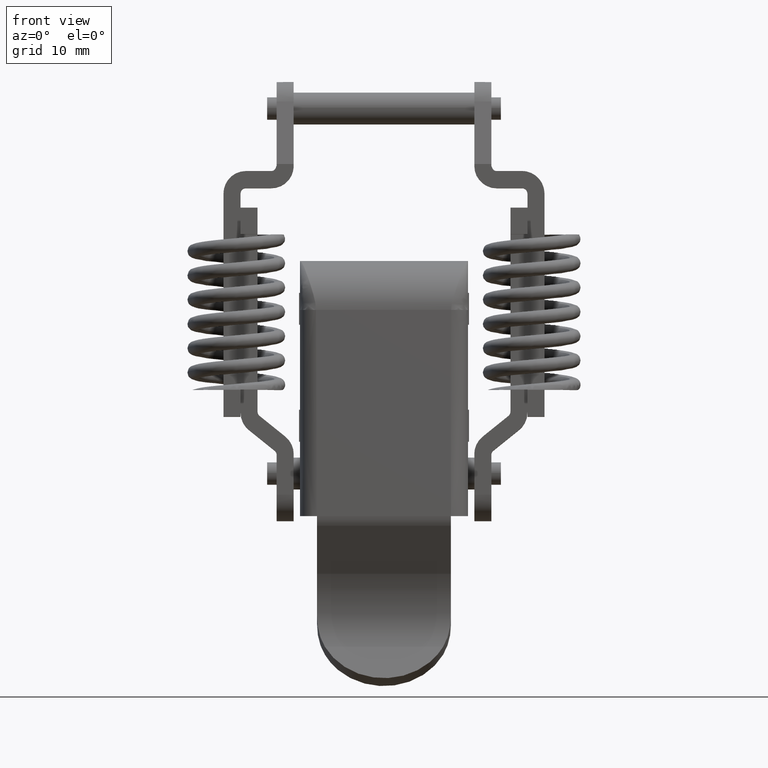
[diagram: clean part render]
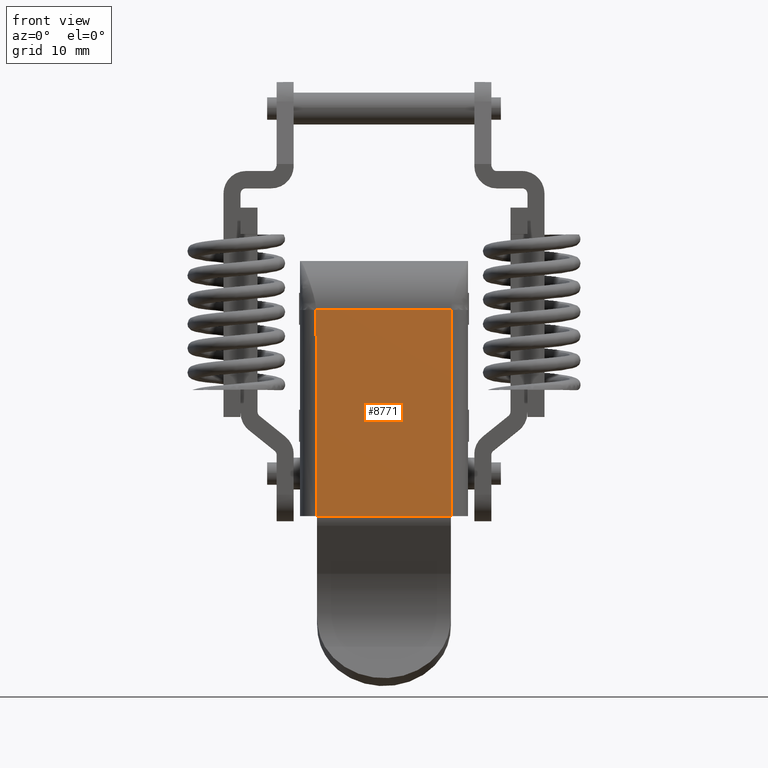
[diagram: same view with one face highlighted and labeled with its STEP entity id]
A machine part, front view. The second image highlights one B-rep face of the part: STEP entity #8771.
In plain terms, the highlighted face is a freeform B-spline surface patch.
Its self-contained STEP definition (entity closure, byte-faithful):
#7070=CARTESIAN_POINT('',(-8.699999999999999,6.400000000000000,-18.949999999999999));
#7071=VERTEX_POINT('',#7070);
#7147=CARTESIAN_POINT('',(-8.699999999999999,6.300000000000000,-38.350000000000001));
#7148=VERTEX_POINT('',#7147);
#7164=CARTESIAN_POINT('',(-8.699999999999999,6.400000000000000,-18.949999999999999));
#7165=CARTESIAN_POINT('',(-8.699999999999999,6.400000000000000,-25.416666666666600));
#7166=CARTESIAN_POINT('',(-8.699999999999999,6.350000000000000,-31.883333333333251));
#7167=CARTESIAN_POINT('',(-8.699999999999999,6.300000000000000,-38.350000000000001));
#7168=B_SPLINE_CURVE_WITH_KNOTS('',3,(#7164,#7165,#7166,#7167),.UNSPECIFIED.,.F.,.U.,(4,4),(0.666666666666667,1.000000000000000),.UNSPECIFIED.);
#7169=EDGE_CURVE('',#7071,#7148,#7168,.T.);
#7232=CARTESIAN_POINT('',(-8.699999999999999,-6.300000000000000,-18.949999999999999));
#7233=VERTEX_POINT('',#7232);
#7333=CARTESIAN_POINT('',(-8.699999999999999,-6.300000000000000,-38.350000000000001));
#7334=VERTEX_POINT('',#7333);
#7335=CARTESIAN_POINT('',(-8.699999999999999,-6.299999999999920,-38.350000000000001));
#7336=CARTESIAN_POINT('',(-8.699999999999999,-6.299999999999920,-31.883333333333251));
#7337=CARTESIAN_POINT('',(-8.699999999999999,-6.299999999999920,-25.416666666666551));
#7338=CARTESIAN_POINT('',(-8.699999999999999,-6.300000000000000,-18.949999999999999));
#7339=B_SPLINE_CURVE_WITH_KNOTS('',3,(#7335,#7336,#7337,#7338),.UNSPECIFIED.,.F.,.U.,(4,4),(0.0,0.333333333333333),.UNSPECIFIED.);
#7340=EDGE_CURVE('',#7334,#7233,#7339,.T.);
#7683=CARTESIAN_POINT('',(-8.699999999999999,6.300000000000000,-38.356775112142202));
#7684=VERTEX_POINT('',#7683);
#7705=CARTESIAN_POINT('',(-8.699999999999999,-6.300000000000000,-38.356775112142202));
#7706=VERTEX_POINT('',#7705);
#7720=CARTESIAN_POINT('',(-8.699999999999999,6.300000000000000,-38.356775112142202));
#7721=CARTESIAN_POINT('',(-8.699999999999999,-6.300000000000000,-38.356775112142202));
#7722=QUASI_UNIFORM_CURVE('',1,(#7720,#7721),.UNSPECIFIED.,.F.,.U.);
#7723=EDGE_CURVE('',#7684,#7706,#7722,.T.);
#7872=CARTESIAN_POINT('',(-8.699999999999999,-6.300000000000000,-38.350000000000001));
#7873=CARTESIAN_POINT('',(-8.699999999999999,-6.300000000000000,-38.356775112142202));
#7874=QUASI_UNIFORM_CURVE('',1,(#7872,#7873),.UNSPECIFIED.,.F.,.U.);
#7875=EDGE_CURVE('',#7334,#7706,#7874,.T.);
#7941=CARTESIAN_POINT('',(-8.699999999999999,6.300000000000000,-38.350000000000001));
#7942=CARTESIAN_POINT('',(-8.699999999999999,6.300000000000000,-38.356775112142202));
#7943=QUASI_UNIFORM_CURVE('',1,(#7941,#7942),.UNSPECIFIED.,.F.,.U.);
#7944=EDGE_CURVE('',#7148,#7684,#7943,.T.);
#8754=CARTESIAN_POINT('',(-8.699999999999999,-6.934365213821962,-39.326141600275783));
#8755=CARTESIAN_POINT('',(-8.699999999999999,-6.934365213821962,-17.980632644315978));
#8756=CARTESIAN_POINT('',(-8.699999999999999,7.034365327368811,-39.326141600275783));
#8757=CARTESIAN_POINT('',(-8.699999999999999,7.034365327368811,-17.980632644315978));
#8758=B_SPLINE_SURFACE_WITH_KNOTS('',1,1,((#8754,#8756),(#8755,#8757)),.UNSPECIFIED.,.F.,.F.,.U.,(2,2),(2,2),(0.0,21.345508955959811),(0.0,13.968730541190769),.UNSPECIFIED.);
#8759=CARTESIAN_POINT('',(-8.699999999999999,6.400000000000000,-18.949999999999999));
#8760=CARTESIAN_POINT('',(-8.699999999999999,-6.300000000000000,-18.949999999999999));
#8761=QUASI_UNIFORM_CURVE('',1,(#8759,#8760),.UNSPECIFIED.,.F.,.U.);
#8762=EDGE_CURVE('',#7071,#7233,#8761,.T.);
#8763=ORIENTED_EDGE('',*,*,#8762,.F.);
#8764=ORIENTED_EDGE('',*,*,#7169,.T.);
#8765=ORIENTED_EDGE('',*,*,#7944,.T.);
#8766=ORIENTED_EDGE('',*,*,#7723,.T.);
#8767=ORIENTED_EDGE('',*,*,#7875,.F.);
#8768=ORIENTED_EDGE('',*,*,#7340,.T.);
#8769=EDGE_LOOP('',(#8763,#8764,#8765,#8766,#8767,#8768));
#8770=FACE_OUTER_BOUND('',#8769,.T.);
#8771=ADVANCED_FACE('',(#8770),#8758,.T.);